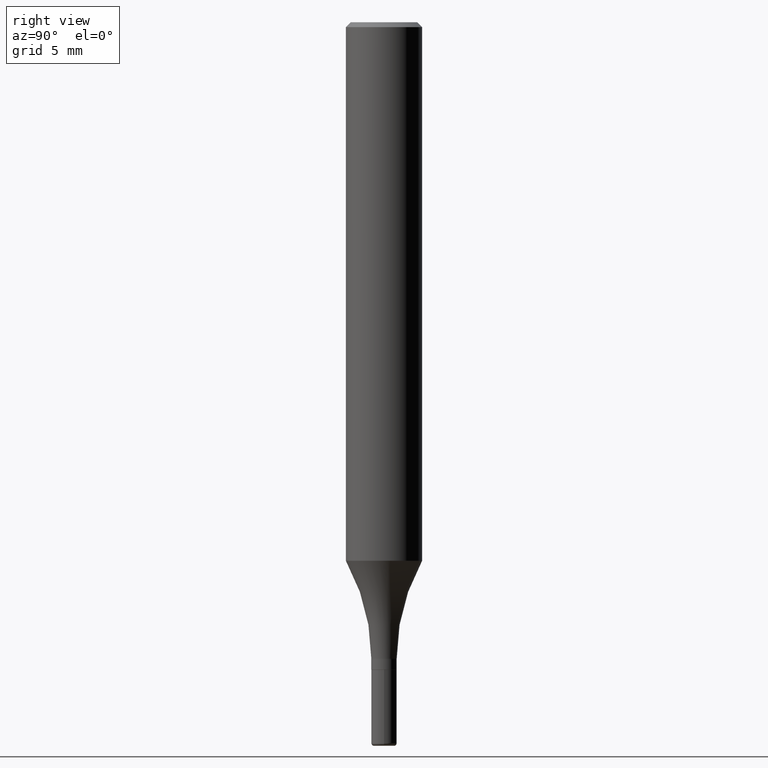
[diagram: clean part render]
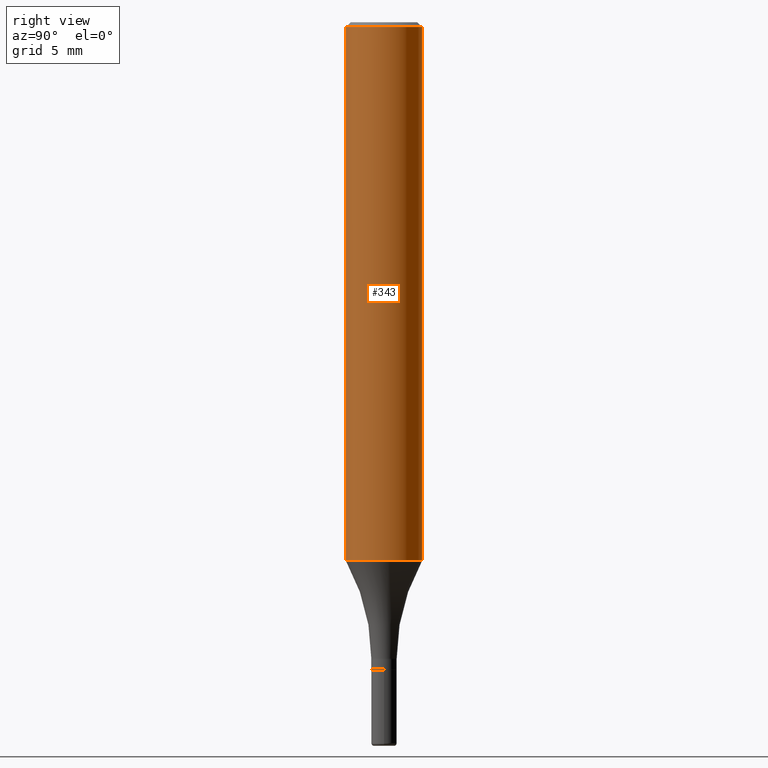
[diagram: same view with one face highlighted and labeled with its STEP entity id]
A machine part, right view. The second image highlights one B-rep face of the part: STEP entity #343.
In plain terms, the highlighted cylindrical surface (partial cylindrical patch) has radius 2.9997 mm, axis along (-0, 0, 1).
Its self-contained STEP definition (entity closure, byte-faithful):
#11 = ORIENTED_EDGE ( 'NONE', *, *, #39, .T. ) ;
#18 = CARTESIAN_POINT ( 'NONE',  ( -8.246878922347480654E-16, -0.1181000000000000105, 4.123996871225391415E-16 ) ) ;
#39 = EDGE_CURVE ( 'NONE', #48, #338, #242, .T. ) ;
#40 = DIRECTION ( 'NONE',  ( -2.445139223324277623E-29, 3.491953320258587093E-15, 1.000000000000000000 ) ) ;
#42 = ORIENTED_EDGE ( 'NONE', *, *, #152, .F. ) ;
#48 = VERTEX_POINT ( 'NONE', #359 ) ;
#77 = CIRCLE ( 'NONE', #438, 0.1181000000000000383 ) ;
#81 = DIRECTION ( 'NONE',  ( -2.445139223324277623E-29, 3.491953320258587093E-15, 1.000000000000000000 ) ) ;
#88 = DIRECTION ( 'NONE',  ( -6.982962677686265922E-15, -1.000000000000000000, 3.491953320258586699E-15 ) ) ;
#102 = VERTEX_POINT ( 'NONE', #508 ) ;
#122 = DIRECTION ( 'NONE',  ( -2.445139223324277343E-29, 3.491953320258587093E-15, 1.000000000000000000 ) ) ;
#152 = EDGE_CURVE ( 'NONE', #102, #234, #327, .T. ) ;
#159 = EDGE_CURVE ( 'NONE', #102, #48, #77, .T. ) ;
#192 = CARTESIAN_POINT ( 'NONE',  ( 3.667708834986338837E-31, -5.237929980387770643E-17, -0.01499999999999968373 ) ) ;
#234 = VERTEX_POINT ( 'NONE', #277 ) ;
#242 = LINE ( 'NONE', #494, #518 ) ;
#265 = EDGE_CURVE ( 'NONE', #234, #338, #386, .T. ) ;
#274 = ORIENTED_EDGE ( 'NONE', *, *, #159, .T. ) ;
#277 = CARTESIAN_POINT ( 'NONE',  ( -8.102248135368174406E-16, -0.1181000000000000522, -0.01499999999999927260 ) ) ;
#280 = CARTESIAN_POINT ( 'NONE',  ( 4.084351511197792915E-29, -5.832945905321489413E-15, -1.670396299824977726 ) ) ;
#283 = AXIS2_PLACEMENT_3D ( 'NONE', #288, #451, #88 ) ;
#285 = EDGE_LOOP ( 'NONE', ( #274, #11, #331, #42 ) ) ;
#288 = CARTESIAN_POINT ( 'NONE',  ( 0.000000000000000000, 0.000000000000000000, 0.000000000000000000 ) ) ;
#327 = LINE ( 'NONE', #18, #464 ) ;
#331 = ORIENTED_EDGE ( 'NONE', *, *, #265, .F. ) ;
#338 = VERTEX_POINT ( 'NONE', #365 ) ;
#341 = AXIS2_PLACEMENT_3D ( 'NONE', #192, #81, #351 ) ;
#343 = ADVANCED_FACE ( 'NONE', ( #437 ), #498, .T. ) ;
#351 = DIRECTION ( 'NONE',  ( -6.982962677686265922E-15, -1.000000000000000000, 3.487819265831411744E-15 ) ) ;
#359 = CARTESIAN_POINT ( 'NONE',  ( 8.391509709327193165E-16, 0.1180999999999942096, -1.670396299824978170 ) ) ;
#365 = CARTESIAN_POINT ( 'NONE',  ( 8.246878922347483612E-16, 0.1180999999999999411, -0.01500000000000009659 ) ) ;
#386 = CIRCLE ( 'NONE', #341, 0.1180999999999999966 ) ;
#437 = FACE_OUTER_BOUND ( 'NONE', #285, .T. ) ;
#438 = AXIS2_PLACEMENT_3D ( 'NONE', #280, #40, #484 ) ;
#440 = DIRECTION ( 'NONE',  ( -2.445139223324277343E-29, 3.491953320258587093E-15, 1.000000000000000000 ) ) ;
#451 = DIRECTION ( 'NONE',  ( -2.445139223324277623E-29, 3.491953320258587093E-15, 1.000000000000000000 ) ) ;
#464 = VECTOR ( 'NONE', #122, 39.37007874015748143 ) ;
#484 = DIRECTION ( 'NONE',  ( -6.982962677686265922E-15, -1.000000000000000000, 4.626330217890367758E-15 ) ) ;
#494 = CARTESIAN_POINT ( 'NONE',  ( 8.391509709326782957E-16, 0.1181000000000000105, -4.123996871225391415E-16 ) ) ;
#498 = CYLINDRICAL_SURFACE ( 'NONE', #283, 0.1181000000000000105 ) ;
#508 = CARTESIAN_POINT ( 'NONE',  ( -8.246878922347075377E-16, -0.1181000000000058253, -1.670396299824977282 ) ) ;
#518 = VECTOR ( 'NONE', #440, 39.37007874015748143 ) ;